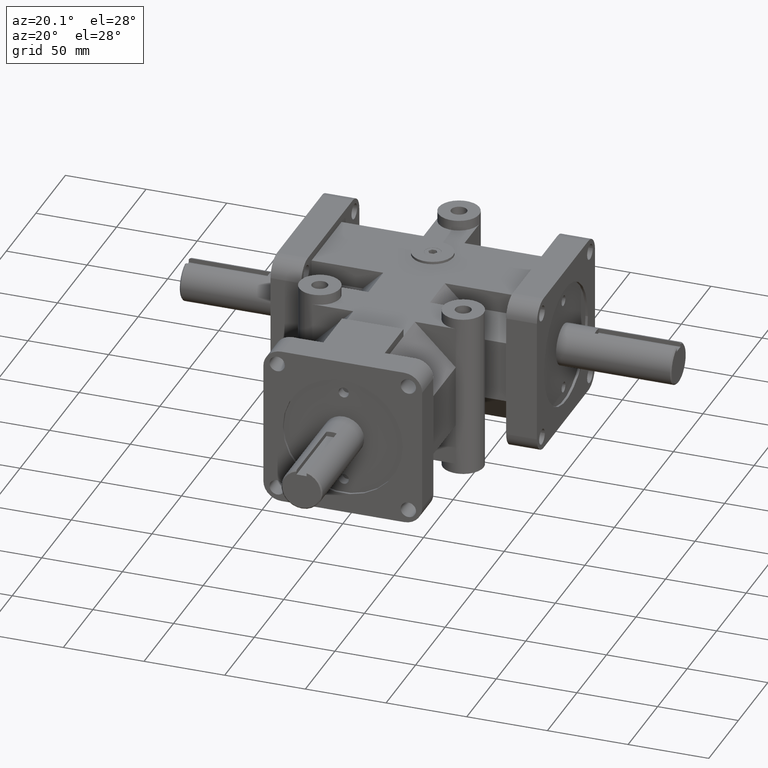
[diagram: clean part render]
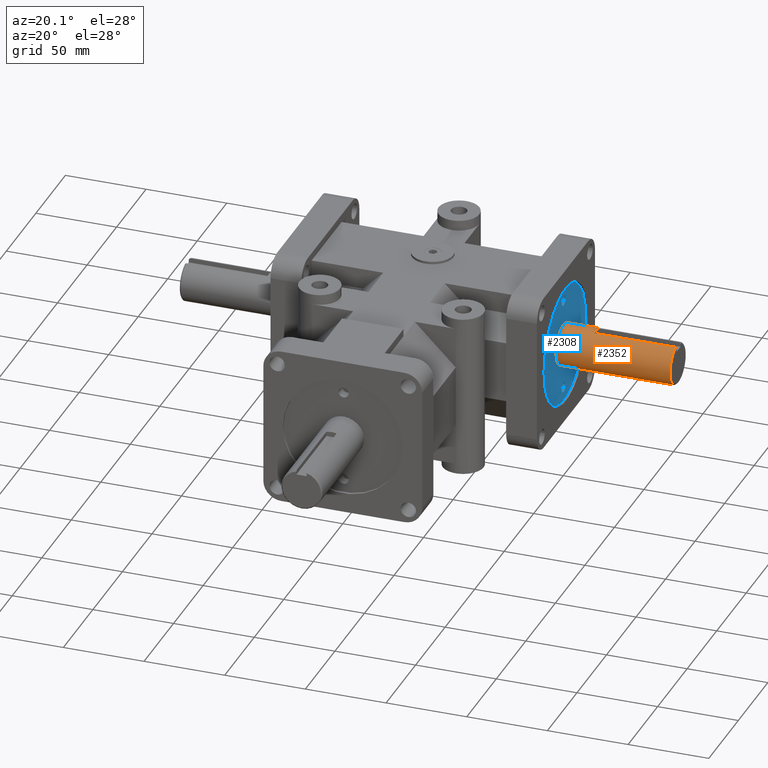
[diagram: same view with the hole feature highlighted: cylindrical wall and planar end face, labeled with their STEP entity ids]
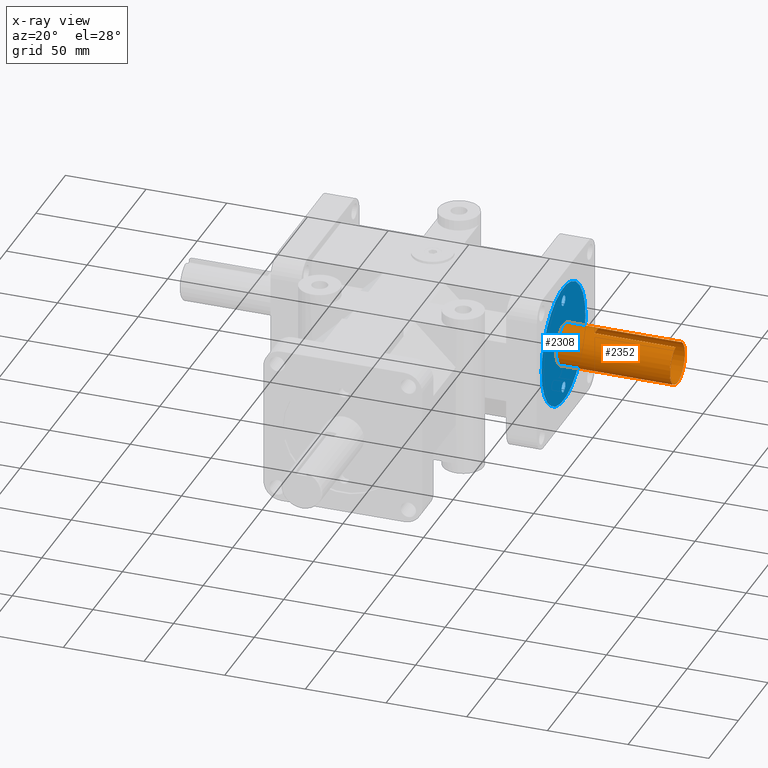
[diagram: x-ray of the same camera — body ghosted, the hole faces saturated]
A machine part, auxiliary view. The highlighted faces form one hole feature of diameter 25.4 mm: the cylindrical wall (entity #2352, orange) and its adjacent planar end face (entity #2308, blue) — they share a circular edge in the B-rep.
The next image is the same camera in x-ray (body ghosted, the hole faces saturated) — the bore reads through the body.
Wall:
#64=CYLINDRICAL_SURFACE('',#2582,0.5);
#116=CIRCLE('',#2503,0.5);
#153=CIRCLE('',#2583,0.5);
#154=CIRCLE('',#2584,0.5);
#275=VERTEX_POINT('',#3482);
#348=VERTEX_POINT('',#3695);
#349=VERTEX_POINT('',#3696);
#350=VERTEX_POINT('',#3698);
#351=VERTEX_POINT('',#3700);
#533=VECTOR('',#3057,1.);
#534=VECTOR('',#3060,1.);
#734=LINE('',#3697,#533);
#735=LINE('',#3701,#534);
#923=EDGE_CURVE('',#275,#275,#116,.T.);
#1020=EDGE_CURVE('',#348,#349,#153,.T.);
#1021=EDGE_CURVE('',#348,#350,#734,.T.);
#1022=EDGE_CURVE('',#350,#351,#154,.T.);
#1023=EDGE_CURVE('',#351,#349,#735,.T.);
#1450=ORIENTED_EDGE('',*,*,#923,.F.);
#1451=ORIENTED_EDGE('',*,*,#1020,.F.);
#1452=ORIENTED_EDGE('',*,*,#1021,.T.);
#1453=ORIENTED_EDGE('',*,*,#1022,.T.);
#1454=ORIENTED_EDGE('',*,*,#1023,.T.);
#1933=EDGE_LOOP('',(#1450));
#1934=EDGE_LOOP('',(#1451,#1452,#1453,#1454));
#2168=FACE_BOUND('',#1933,.T.);
#2169=FACE_BOUND('',#1934,.T.);
#2352=ADVANCED_FACE('',(#2168,#2169),#64,.T.);
#2503=AXIS2_PLACEMENT_3D('',#3481,#2850,#2851);
#2582=AXIS2_PLACEMENT_3D('',#3693,#3053,#3054);
#2583=AXIS2_PLACEMENT_3D('',#3694,#3055,#3056);
#2584=AXIS2_PLACEMENT_3D('',#3699,#3058,#3059);
#2850=DIRECTION('',(-1.,0.,0.));
#2851=DIRECTION('',(0.,0.5,0.));
#3053=DIRECTION('',(1.,-6.12303176911189E-017,0.));
#3054=DIRECTION('',(3.06151588455594E-017,0.5,0.));
#3055=DIRECTION('',(1.,-6.12303176911189E-017,0.));
#3056=DIRECTION('',(3.06151588455594E-017,0.5,0.));
#3057=DIRECTION('',(-1.,6.12303176911189E-017,0.));
#3058=DIRECTION('',(-1.,6.12303176911189E-017,0.));
#3059=DIRECTION('',(3.06151588455594E-017,0.5,0.));
#3060=DIRECTION('',(1.,-6.12303176911189E-017,0.));
#3481=CARTESIAN_POINT('',(3.19,6.,0.));
#3482=CARTESIAN_POINT('',(3.19,5.5,-7.27364132466213E-016));
#3693=CARTESIAN_POINT('',(3.2492125,6.,0.));
#3694=CARTESIAN_POINT('',(5.9692125,6.,0.));
#3695=CARTESIAN_POINT('',(5.9692125,5.875,0.484122918275927));
#3696=CARTESIAN_POINT('',(5.9692125,6.125,0.484122918275927));
#3697=CARTESIAN_POINT('',(3.2492125,5.875,0.484122918275927));
#3698=CARTESIAN_POINT('',(4.,5.875,0.484122918275927));
#3699=CARTESIAN_POINT('',(4.,6.,0.));
#3700=CARTESIAN_POINT('',(4.,6.125,0.484122918275927));
#3701=CARTESIAN_POINT('',(3.2492125,6.125,0.484122918275927));
End face:
#100=CIRCLE('',#2474,0.125);
#102=CIRCLE('',#2478,0.125);
#110=CIRCLE('',#2493,1.463);
#116=CIRCLE('',#2503,0.5);
#259=VERTEX_POINT('',#3437);
#261=VERTEX_POINT('',#3443);
#269=VERTEX_POINT('',#3466);
#275=VERTEX_POINT('',#3482);
#907=EDGE_CURVE('',#259,#259,#100,.T.);
#909=EDGE_CURVE('',#261,#261,#102,.T.);
#917=EDGE_CURVE('',#269,#269,#110,.T.);
#923=EDGE_CURVE('',#275,#275,#116,.T.);
#1284=ORIENTED_EDGE('',*,*,#907,.T.);
#1285=ORIENTED_EDGE('',*,*,#909,.T.);
#1286=ORIENTED_EDGE('',*,*,#917,.T.);
#1287=ORIENTED_EDGE('',*,*,#923,.T.);
#1864=EDGE_LOOP('',(#1284));
#1865=EDGE_LOOP('',(#1285));
#1866=EDGE_LOOP('',(#1286));
#1867=EDGE_LOOP('',(#1287));
#2099=FACE_BOUND('',#1864,.T.);
#2100=FACE_BOUND('',#1865,.T.);
#2101=FACE_BOUND('',#1866,.T.);
#2102=FACE_BOUND('',#1867,.T.);
#2308=ADVANCED_FACE('',(#2099,#2100,#2101,#2102),#3951,.T.);
#2474=AXIS2_PLACEMENT_3D('',#3436,#2799,#2800);
#2478=AXIS2_PLACEMENT_3D('',#3442,#2806,#2807);
#2493=AXIS2_PLACEMENT_3D('',#3465,#2833,#2834);
#2502=AXIS2_PLACEMENT_3D('',#3480,#2849,$);
#2503=AXIS2_PLACEMENT_3D('',#3481,#2850,#2851);
#2799=DIRECTION('',(-1.,4.56193326618001E-032,2.28096663309E-032));
#2800=DIRECTION('',(0.,0.125,0.));
#2806=DIRECTION('',(-1.,4.56193326618001E-032,2.28096663309E-032));
#2807=DIRECTION('',(0.,0.125,0.));
#2833=DIRECTION('',(1.,0.,0.));
#2834=DIRECTION('',(0.,1.463,0.));
#2849=DIRECTION('',(1.,-4.56193326618001E-032,-2.28096663309E-032));
#2850=DIRECTION('',(-1.,0.,0.));
#2851=DIRECTION('',(0.,0.5,0.));
#3436=CARTESIAN_POINT('',(3.19,6.,-1.12));
#3437=CARTESIAN_POINT('',(3.19,5.875,-1.12));
#3442=CARTESIAN_POINT('',(3.19,6.,1.12));
#3443=CARTESIAN_POINT('',(3.19,5.875,1.12));
#3465=CARTESIAN_POINT('',(3.19,6.,0.));
#3466=CARTESIAN_POINT('',(3.19,7.463,0.));
#3480=CARTESIAN_POINT('',(3.19,6.11954545454545,-7.97439075788967E-017));
#3481=CARTESIAN_POINT('',(3.19,6.,0.));
#3482=CARTESIAN_POINT('',(3.19,5.5,-7.27364132466213E-016));
#3951=PLANE('',#2502);